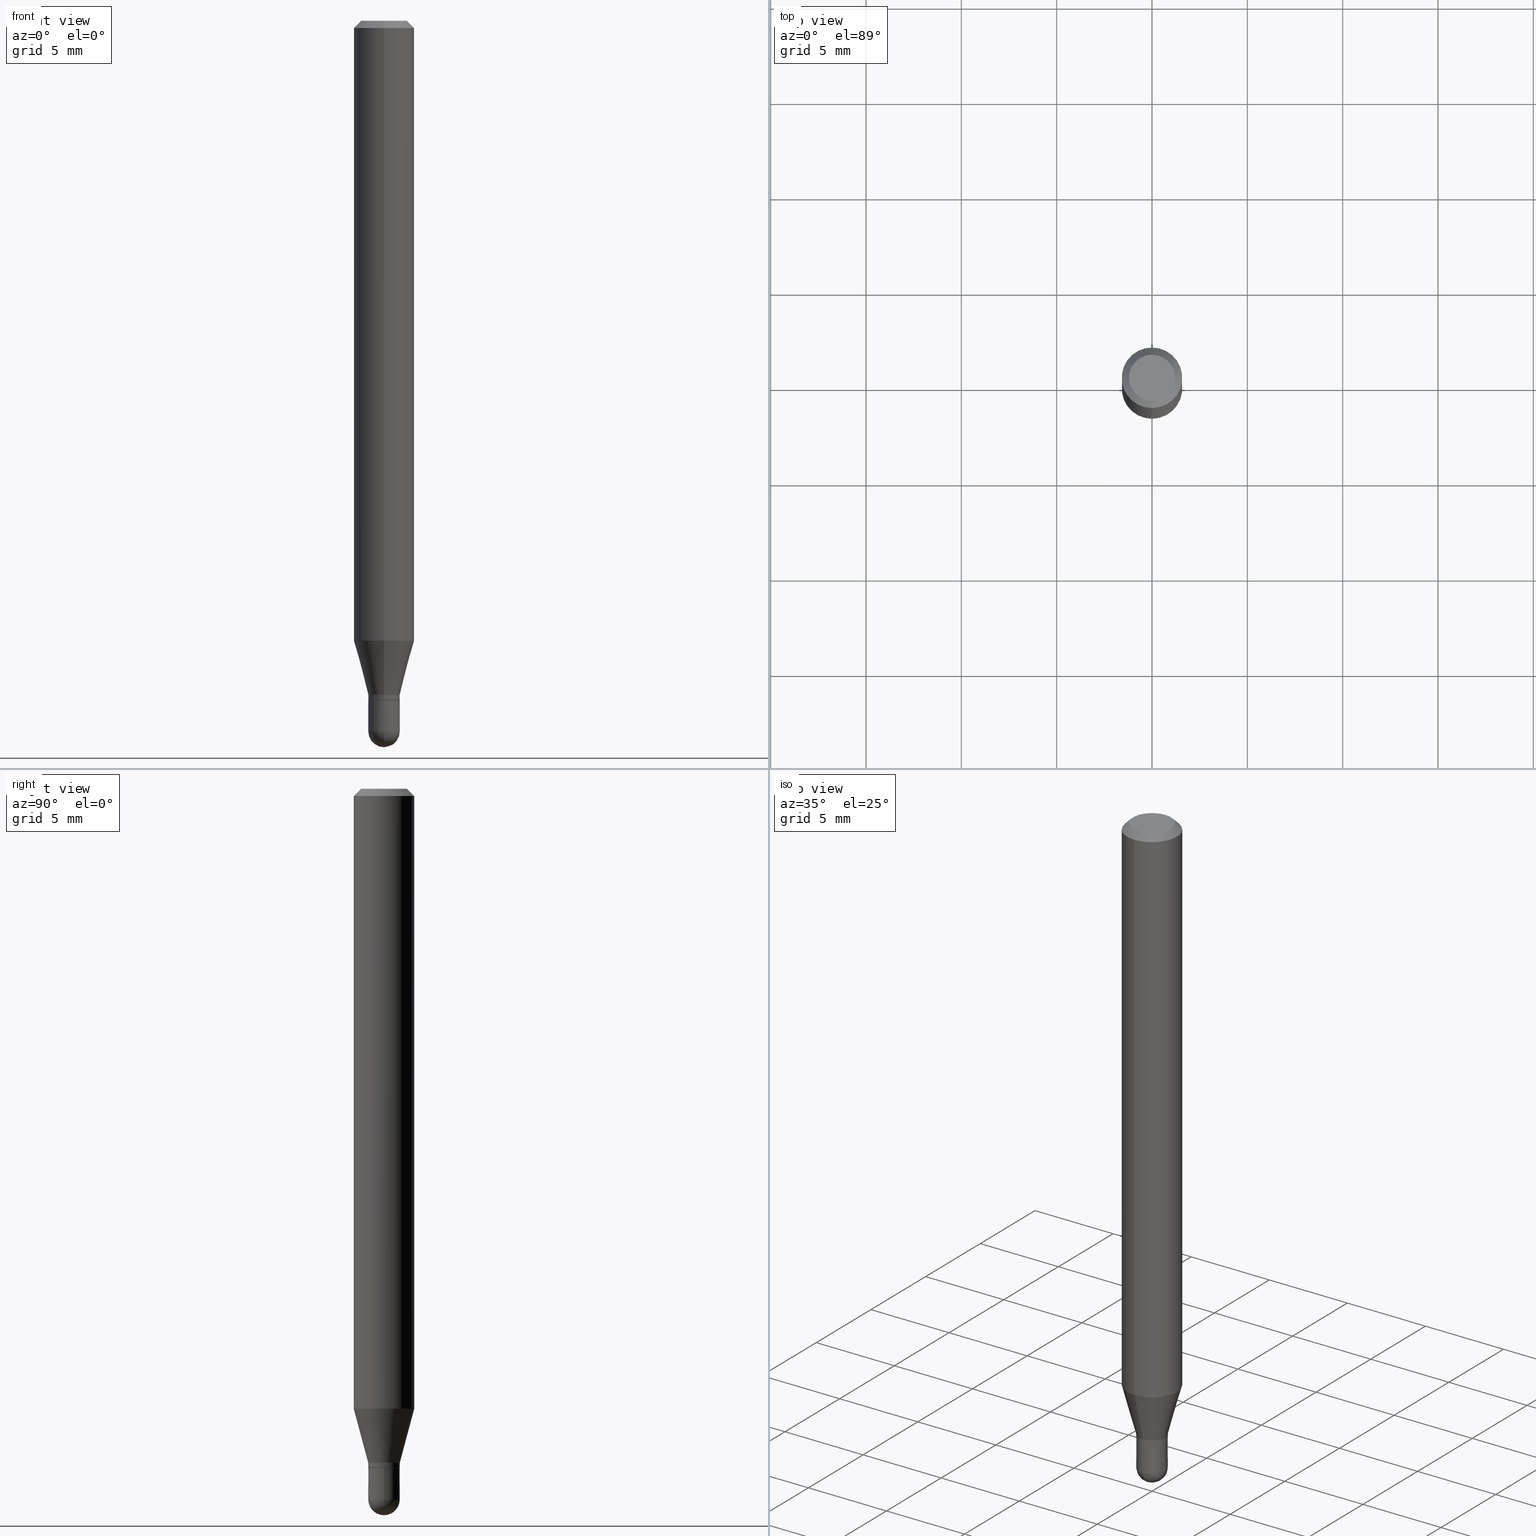
[diagram: canonical four-view strip — front | top / right | iso, engineering-drawing reading convention]
A machine part, canonical four-view strip (front | top / right | iso — engineering-drawing reading convention). The complete STEP part file that produces these views, byte-faithful:
ISO-10303-21;
HEADER;
FILE_DESCRIPTION (( 'STEP AP203' ),
    '1' );
FILE_NAME ('00726.STEP',
    '2024-03-07T18:07:59',
    ( '' ),
    ( '' ),
    'SwSTEP 2.0',
    'SolidWorks 2023',
    '' );
FILE_SCHEMA (( 'CONFIG_CONTROL_DESIGN' ));
ENDSEC;

DATA;
#1 = DIRECTION ( 'NONE',  ( -2.445482281465113779E-29, 3.491462041475252887E-15, 1.000000000000000000 ) ) ;
#2 = CARTESIAN_POINT ( 'NONE',  ( 3.428566158614090540E-29, -4.895029782148305126E-15, -1.402000000000000135 ) ) ;
#3 = AXIS2_PLACEMENT_3D ( 'NONE', #405, #52, #359 ) ;
#4 = AXIS2_PLACEMENT_3D ( 'NONE', #311, #274, #387 ) ;
#5 = CC_DESIGN_APPROVAL ( #261, ( #27 ) ) ;
#6 = CARTESIAN_POINT ( 'NONE',  ( 3.585946182636855061E-29, -5.127728966849546308E-15, -1.467500000000000027 ) ) ;
#7 = ADVANCED_FACE ( 'NONE', ( #51 ), #433, .T. ) ;
#8 = ORIENTED_EDGE ( 'NONE', *, *, #64, .F. ) ;
#9 = ADVANCED_FACE ( 'NONE', ( #133 ), #372, .T. ) ;
#10 = DIRECTION ( 'NONE',  ( -2.445482281465113779E-29, 3.491462041475252887E-15, 1.000000000000000000 ) ) ;
#11 = ORIENTED_EDGE ( 'NONE', *, *, #197, .F. ) ;
#12 = EDGE_CURVE ( 'NONE', #418, #285, #233, .T. ) ;
#13 = PERSON_AND_ORGANIZATION ( #327, #218 ) ;
#14 = CYLINDRICAL_SURFACE ( 'NONE', #234, 0.03250000000000000111 ) ;
#15 = CLOSED_SHELL ( 'NONE', ( #78, #7, #429, #445, #163, #9, #471, #425, #119, #26, #479, #62 ) ) ;
#16 = AXIS2_PLACEMENT_3D ( 'NONE', #139, #411, #458 ) ;
#17 = DATE_AND_TIME ( #224, #309 ) ;
#18 = AXIS2_PLACEMENT_3D ( 'NONE', #238, #499, #506 ) ;
#19 = AXIS2_PLACEMENT_3D ( 'NONE', #283, #396, #89 ) ;
#20 = DIRECTION ( 'NONE',  ( -1.000000000000000000, 6.982962677686265922E-15, -4.883557194083112340E-29 ) ) ;
#21 = DIRECTION ( 'NONE',  ( 0.000000000000000000, 0.000000000000000000, 1.000000000000000000 ) ) ;
#22 = DIRECTION ( 'NONE',  ( 4.937700262164548042E-15, 0.7071067811865451302, -0.7071067811865499042 ) ) ;
#23 = APPROVAL_ROLE ( '' ) ;
#24 = AXIS2_PLACEMENT_3D ( 'NONE', #179, #336, #494 ) ;
#25 = CARTESIAN_POINT ( 'NONE',  ( 0.000000000000000000, 0.000000000000000000, 0.000000000000000000 ) ) ;
#26 = ADVANCED_FACE ( 'NONE', ( #510 ), #162, .F. ) ;
#27 = PRODUCT_DEFINITION ( 'UNKNOWN', '', #186, #413 ) ;
#28 = CARTESIAN_POINT ( 'NONE',  ( 0.03250000000000000111, -5.122003124082894208E-15, -1.402000000000000135 ) ) ;
#29 = CARTESIAN_POINT ( 'NONE',  ( 2.309263891220329627E-16, 0.03250000000000006356, -1.134725163479459447E-16 ) ) ;
#30 = ORIENTED_EDGE ( 'NONE', *, *, #453, .T. ) ;
#31 = EDGE_CURVE ( 'NONE', #232, #165, #208, .T. ) ;
#32 = DIRECTION ( 'NONE',  ( -2.445468806185136597E-29, 3.491481338843145583E-15, 1.000000000000000000 ) ) ;
#33 = AXIS2_PLACEMENT_3D ( 'NONE', #137, #145, #298 ) ;
#34 = ORIENTED_EDGE ( 'NONE', *, *, #120, .F. ) ;
#35 = CC_DESIGN_PERSON_AND_ORGANIZATION_ASSIGNMENT ( #99, #60, ( #27 ) ) ;
#36 = DIRECTION ( 'NONE',  ( -6.982962677686265922E-15, -1.000000000000000000, 3.483106191921935554E-15 ) ) ;
#37 = VERTEX_POINT ( 'NONE', #54 ) ;
#38 = LINE ( 'NONE', #328, #49 ) ;
#39 = ORIENTED_EDGE ( 'NONE', *, *, #502, .F. ) ;
#40 = DIRECTION ( 'NONE',  ( -2.445482281465113779E-29, 3.491462041475253282E-15, 1.000000000000000000 ) ) ;
#41 = CIRCLE ( 'NONE', #493, 0.03250000000000000111 ) ;
#42 = FACE_OUTER_BOUND ( 'NONE', #255, .T. ) ;
#43 = EDGE_LOOP ( 'NONE', ( #459, #30, #83, #472 ) ) ;
#44 = FACE_OUTER_BOUND ( 'NONE', #478, .T. ) ;
#45 = VERTEX_POINT ( 'NONE', #451 ) ;
#46 = CARTESIAN_POINT ( 'NONE',  ( 3.668223422197672875E-31, -5.237193062212882215E-17, -0.01500000000000000812 ) ) ;
#47 = EDGE_LOOP ( 'NONE', ( #395, #244, #402, #209, #314 ) ) ;
#48 = AXIS2_PLACEMENT_3D ( 'NONE', #486, #443, #100 ) ;
#49 = VECTOR ( 'NONE', #481, 39.37007874015748143 ) ;
#50 = EDGE_CURVE ( 'NONE', #173, #168, #369, .T. ) ;
#51 = FACE_OUTER_BOUND ( 'NONE', #270, .T. ) ;
#52 = DIRECTION ( 'NONE',  ( -2.445482281465113779E-29, 3.491462041475252887E-15, 1.000000000000000000 ) ) ;
#53 = CALENDAR_DATE ( 2024, 7, 3 ) ;
#54 = CARTESIAN_POINT ( 'NONE',  ( 3.840629472727447874E-16, 0.04749999999999999362, -1.747056831868805136E-16 ) ) ;
#55 = ADVANCED_FACE ( 'NONE', ( #377 ), #106, .T. ) ;
#56 = AXIS2_PLACEMENT_3D ( 'NONE', #320, #358, #242 ) ;
#57 = COORDINATED_UNIVERSAL_TIME_OFFSET ( 5, 0, .BEHIND. ) ;
#58 = AXIS2_PLACEMENT_3D ( 'NONE', #302, #21, #102 ) ;
#59 = CARTESIAN_POINT ( 'NONE',  ( 3.588725473076687933E-29, -5.123748864752316500E-15, -1.467500000000000027 ) ) ;
#60 = PERSON_AND_ORGANIZATION_ROLE ( 'creator' ) ;
#61 = DIRECTION ( 'NONE',  ( -2.445482281465113779E-29, 3.491462041475252887E-15, 1.000000000000000000 ) ) ;
#62 = ADVANCED_FACE ( 'NONE', ( #345 ), #265, .T. ) ;
#63 = APPLICATION_PROTOCOL_DEFINITION ( 'international standard', 'config_control_design', 1994, #201 ) ;
#64 = EDGE_CURVE ( 'NONE', #173, #45, #134, .T. ) ;
#65 = CARTESIAN_POINT ( 'NONE',  ( -2.269462870248040921E-16, -0.03250000000000006356, 1.134725163479459447E-16 ) ) ;
#66 = CIRCLE ( 'NONE', #184, 0.06250000000000000000 ) ;
#67 = DIRECTION ( 'NONE',  ( -1.807323732225330139E-15, -0.2588190451025181860, 0.9659258262890689783 ) ) ;
#68 = EDGE_CURVE ( 'NONE', #206, #418, #223, .T. ) ;
#69 = CIRCLE ( 'NONE', #310, 0.03249999999999992478 ) ;
#70 = CARTESIAN_POINT ( 'NONE',  ( 3.428547266271562329E-29, -4.895056837058090855E-15, -1.402000000000000135 ) ) ;
#71 = ORIENTED_EDGE ( 'NONE', *, *, #64, .T. ) ;
#72 = DIRECTION ( 'NONE',  ( -2.445482281465113779E-29, 3.491462041475252887E-15, 1.000000000000000000 ) ) ;
#73 = ORIENTED_EDGE ( 'NONE', *, *, #449, .F. ) ;
#74 = CYLINDRICAL_SURFACE ( 'NONE', #304, 0.03250000000000000111 ) ;
#75 = AXIS2_PLACEMENT_3D ( 'NONE', #157, #318, #346 ) ;
#76 = CARTESIAN_POINT ( 'NONE',  ( 3.666813564057788459E-29, -5.239212059313334264E-15, -1.500000000000000222 ) ) ;
#77 = ORIENTED_EDGE ( 'NONE', *, *, #449, .T. ) ;
#78 = ADVANCED_FACE ( 'NONE', ( #379 ), #216, .T. ) ;
#79 = DIRECTION ( 'NONE',  ( -6.982962677686265922E-15, -1.000000000000000000, 0.000000000000000000 ) ) ;
#80 = ORIENTED_EDGE ( 'NONE', *, *, #228, .F. ) ;
#81 = DIRECTION ( 'NONE',  ( 6.982962677686265922E-15, 1.000000000000000000, 0.000000000000000000 ) ) ;
#82 = AXIS2_PLACEMENT_3D ( 'NONE', #2, #332, #482 ) ;
#83 = ORIENTED_EDGE ( 'NONE', *, *, #195, .T. ) ;
#84 = AXIS2_PLACEMENT_3D ( 'NONE', #46, #509, #367 ) ;
#85 = APPROVAL_PERSON_ORGANIZATION ( #484, #330, #174 ) ;
#86 = CIRCLE ( 'NONE', #317, 0.03250000000000000111 ) ;
#87 = CARTESIAN_POINT ( 'NONE',  ( 0.000000000000000000, 0.000000000000000000, 0.000000000000000000 ) ) ;
#88 = ORIENTED_EDGE ( 'NONE', *, *, #417, .T. ) ;
#89 = DIRECTION ( 'NONE',  ( -6.982962677686265133E-15, -1.000000000000000000, 0.000000000000000000 ) ) ;
#90 = ORIENTED_EDGE ( 'NONE', *, *, #426, .T. ) ;
#91 = DIRECTION ( 'NONE',  ( -6.982962677686265922E-15, -1.000000000000000000, 3.491462041475252887E-15 ) ) ;
#92 = ORIENTED_EDGE ( 'NONE', *, *, #195, .F. ) ;
#93 = CIRCLE ( 'NONE', #380, 0.04749999999999999362 ) ;
#94 = COORDINATED_UNIVERSAL_TIME_OFFSET ( 5, 0, .BEHIND. ) ;
#95 = ORIENTED_EDGE ( 'NONE', *, *, #487, .T. ) ;
#96 = DIRECTION ( 'NONE',  ( -6.982962677686265133E-15, -1.000000000000000000, 0.000000000000000000 ) ) ;
#97 = MECHANICAL_CONTEXT ( 'NONE', #190, 'mechanical' ) ;
#98 = CARTESIAN_POINT ( 'NONE',  ( 0.000000000000000000, 0.000000000000000000, 0.000000000000000000 ) ) ;
#99 = PERSON_AND_ORGANIZATION ( #327, #218 ) ;
#100 = DIRECTION ( 'NONE',  ( 1.000000000000000000, -6.982962677686258033E-15, 0.000000000000000000 ) ) ;
#101 = AXIS2_PLACEMENT_3D ( 'NONE', #70, #236, #229 ) ;
#102 = DIRECTION ( 'NONE',  ( 1.000000000000000000, 0.000000000000000000, 0.000000000000000000 ) ) ;
#103 = DIRECTION ( 'NONE',  ( 1.000000000000000000, -6.982962677686267499E-15, 4.876176775795936353E-29 ) ) ;
#104 = EDGE_CURVE ( 'NONE', #285, #420, #489, .T. ) ;
#105 = EDGE_CURVE ( 'NONE', #165, #428, #335, .T. ) ;
#106 = SPHERICAL_SURFACE ( 'NONE', #243, 0.03250000000000000111 ) ;
#107 = UNCERTAINTY_MEASURE_WITH_UNIT (LENGTH_MEASURE( 1.000000000000000082E-05 ), #331, 'distance_accuracy_value', 'NONE');
#108 = PLANE ( 'NONE',  #33 ) ;
#109 = VECTOR ( 'NONE', #278, 39.37007874015748143 ) ;
#110 = SPHERICAL_SURFACE ( 'NONE', #393, 0.03250000000000000111 ) ;
#111 = DIRECTION ( 'NONE',  ( -2.445482281465113779E-29, 3.491462041475252887E-15, 1.000000000000000000 ) ) ;
#112 = EDGE_CURVE ( 'NONE', #37, #239, #187, .T. ) ;
#113 = CARTESIAN_POINT ( 'NONE',  ( 4.440892098500940720E-16, 0.06249999999999993755, -0.01500000000000022669 ) ) ;
#114 = ORIENTED_EDGE ( 'NONE', *, *, #180, .T. ) ;
#115 = CARTESIAN_POINT ( 'NONE',  ( 3.585946182636855061E-29, -5.127728966849546308E-15, -1.467500000000000027 ) ) ;
#116 = VECTOR ( 'NONE', #40, 39.37007874015748143 ) ;
#117 = AXIS2_PLACEMENT_3D ( 'NONE', #248, #360, #124 ) ;
#118 = ORIENTED_EDGE ( 'NONE', *, *, #341, .T. ) ;
#119 = ADVANCED_FACE ( 'NONE', ( #143 ), #108, .F. ) ;
#120 = EDGE_CURVE ( 'NONE', #389, #239, #260, .T. ) ;
#121 = DIRECTION ( 'NONE',  ( -6.982962677686265922E-15, -1.000000000000000000, 4.370956789862821150E-15 ) ) ;
#122 = ORIENTED_EDGE ( 'NONE', *, *, #105, .F. ) ;
#123 = CYLINDRICAL_SURFACE ( 'NONE', #288, 0.06250000000000000000 ) ;
#124 = DIRECTION ( 'NONE',  ( -6.982962677686265133E-15, -1.000000000000000000, 0.000000000000000000 ) ) ;
#125 = ORIENTED_EDGE ( 'NONE', *, *, #480, .T. ) ;
#126 = LOCAL_TIME ( 13, 7, 59.00000000000000000, #94 ) ;
#127 = MANIFOLD_SOLID_BREP ( 'Body-Move/Copy2[1]', #176 ) ;
#128 = DIRECTION ( 'NONE',  ( -4.937700262164674260E-15, -0.7071067811865632269, 0.7071067811865319186 ) ) ;
#129 = ORIENTED_EDGE ( 'NONE', *, *, #12, .T. ) ;
#130 = ADVANCED_FACE ( 'NONE', ( #452 ), #14, .T. ) ;
#131 = FACE_OUTER_BOUND ( 'NONE', #241, .T. ) ;
#132 = ORIENTED_EDGE ( 'NONE', *, *, #221, .T. ) ;
#133 = FACE_OUTER_BOUND ( 'NONE', #43, .T. ) ;
#134 = CIRCLE ( 'NONE', #141, 0.03200000000000000067 ) ;
#135 = LINE ( 'NONE', #338, #210 ) ;
#136 = PERSON_AND_ORGANIZATION ( #327, #218 ) ;
#137 = CARTESIAN_POINT ( 'NONE',  ( 3.316907271900976096E-16, 0.04749999999999999362, -1.702750650784775139E-16 ) ) ;
#138 = CALENDAR_DATE ( 2024, 7, 3 ) ;
#139 = CARTESIAN_POINT ( 'NONE',  ( 3.404111335799438775E-29, -4.860115161733551679E-15, -1.392000000000000126 ) ) ;
#140 = AXIS2_PLACEMENT_3D ( 'NONE', #321, #259, #444 ) ;
#141 = AXIS2_PLACEMENT_3D ( 'NONE', #412, #300, #491 ) ;
#142 = APPROVAL_DATE_TIME ( #344, #330 ) ;
#143 = FACE_OUTER_BOUND ( 'NONE', #203, .T. ) ;
#144 = EDGE_CURVE ( 'NONE', #206, #168, #254, .T. ) ;
#145 = DIRECTION ( 'NONE',  ( 2.445482281465113218E-29, -3.491462041475253282E-15, -1.000000000000000000 ) ) ;
#146 = CARTESIAN_POINT ( 'NONE',  ( 3.588725473076687933E-29, -5.123748864752316500E-15, -1.467500000000000027 ) ) ;
#147 = EDGE_LOOP ( 'NONE', ( #347, #95, #247, #392 ) ) ;
#148 = AXIS2_PLACEMENT_3D ( 'NONE', #295, #442, #96 ) ;
#149 = LOCAL_TIME ( 13, 7, 59.00000000000000000, #492 ) ;
#150 = CARTESIAN_POINT ( 'NONE',  ( -4.364351673553605094E-16, -0.06250000000000451028, -1.280038475772934614 ) ) ;
#151 = ORIENTED_EDGE ( 'NONE', *, *, #370, .T. ) ;
#152 = CARTESIAN_POINT ( 'NONE',  ( 2.309263891220654539E-16, 0.03249999999999491490, -1.401500000000000412 ) ) ;
#153 = VERTEX_POINT ( 'NONE', #447 ) ;
#154 = CARTESIAN_POINT ( 'NONE',  ( -4.364351673553912750E-16, -0.06250000000000005551, -0.01499999999999979128 ) ) ;
#155 = EDGE_CURVE ( 'NONE', #273, #389, #135, .T. ) ;
#156 = EDGE_LOOP ( 'NONE', ( #237, #114, #326, #390 ) ) ;
#157 = CARTESIAN_POINT ( 'NONE',  ( 3.428547266271562329E-29, -4.895056837058090855E-15, -1.402000000000000135 ) ) ;
#158 = VECTOR ( 'NONE', #303, 39.37007874015748143 ) ;
#159 = CC_DESIGN_APPROVAL ( #466, ( #186 ) ) ;
#160 = ORIENTED_EDGE ( 'NONE', *, *, #301, .F. ) ;
#161 = CARTESIAN_POINT ( 'NONE',  ( -2.269462870247710093E-16, -0.03250000000000505956, -1.392000000000000126 ) ) ;
#162 = PLANE ( 'NONE',  #140 ) ;
#163 = ADVANCED_FACE ( 'NONE', ( #406 ), #485, .T. ) ;
#164 = CARTESIAN_POINT ( 'NONE',  ( 4.440892098500625669E-16, 0.06250000000000000000, -2.182163775922033055E-16 ) ) ;
#165 = VERTEX_POINT ( 'NONE', #231 ) ;
#166 = DIRECTION ( 'NONE',  ( -2.445482281465113779E-29, 3.491462041475252887E-15, 1.000000000000000000 ) ) ;
#167 = CC_DESIGN_DATE_AND_TIME_ASSIGNMENT ( #222, #376, ( #401 ) ) ;
#168 = VERTEX_POINT ( 'NONE', #152 ) ;
#169 = VECTOR ( 'NONE', #414, 39.37007874015748143 ) ;
#170 = DIRECTION ( 'NONE',  ( 1.000000000000000000, -6.982962677686265922E-15, 4.883557194083112340E-29 ) ) ;
#171 = ORIENTED_EDGE ( 'NONE', *, *, #104, .T. ) ;
#172 = LENGTH_MEASURE_WITH_UNIT ( LENGTH_MEASURE( 0.02539999999999999897 ), #252 );
#173 = VERTEX_POINT ( 'NONE', #383 ) ;
#174 = APPROVAL_ROLE ( '' ) ;
#175 = CARTESIAN_POINT ( 'NONE',  ( 0.000000000000000000, 0.000000000000000000, 0.000000000000000000 ) ) ;
#176 = CLOSED_SHELL ( 'NONE', ( #130, #55, #272, #404, #250 ) ) ;
#177 = AXIS2_PLACEMENT_3D ( 'NONE', #98, #220, #214 ) ;
#178 = APPROVAL_STATUS ( 'not_yet_approved' ) ;
#179 = CARTESIAN_POINT ( 'NONE',  ( 3.427343417473357420E-29, -4.893284051127568361E-15, -1.401500000000000412 ) ) ;
#180 = EDGE_CURVE ( 'NONE', #168, #285, #382, .T. ) ;
#181 = DIRECTION ( 'NONE',  ( -2.445468806185136597E-29, 3.491481338843145583E-15, 1.000000000000000000 ) ) ;
#182 = PERSON_AND_ORGANIZATION ( #327, #218 ) ;
#183 = DIRECTION ( 'NONE',  ( -2.445482281465113779E-29, 3.491462041475253282E-15, 1.000000000000000000 ) ) ;
#184 = AXIS2_PLACEMENT_3D ( 'NONE', #315, #111, #36 ) ;
#185 = PERSON_AND_ORGANIZATION_ROLE ( 'classification_officer' ) ;
#186 = PRODUCT_DEFINITION_FORMATION_WITH_SPECIFIED_SOURCE ( 'ANY', '', #235, .NOT_KNOWN. ) ;
#187 = LINE ( 'NONE', #375, #434 ) ;
#188 = FACE_OUTER_BOUND ( 'NONE', #398, .T. ) ;
#189 = CARTESIAN_POINT ( 'NONE',  ( -2.269462870247710093E-16, -0.03250000000000505956, -1.392000000000000126 ) ) ;
#190 = APPLICATION_CONTEXT ( 'configuration controlled 3d designs of mechanical parts and assemblies' ) ;
#191 = ORIENTED_EDGE ( 'NONE', *, *, #385, .T. ) ;
#192 = CC_DESIGN_APPROVAL ( #330, ( #401 ) ) ;
#193 = DIRECTION ( 'NONE',  ( -2.445468806185136597E-29, 3.491481338843145583E-15, 1.000000000000000000 ) ) ;
#194 = VERTEX_POINT ( 'NONE', #76 ) ;
#195 = EDGE_CURVE ( 'NONE', #418, #273, #421, .T. ) ;
#196 = CARTESIAN_POINT ( 'NONE',  ( 2.166999616007603867E-46, -3.093866989152393802E-32, -8.861236216806002591E-18 ) ) ;
#197 = EDGE_CURVE ( 'NONE', #239, #389, #66, .T. ) ;
#198 = CARTESIAN_POINT ( 'NONE',  ( 3.585946182636855061E-29, -5.127728966849546308E-15, -1.467500000000000027 ) ) ;
#199 = ORIENTED_EDGE ( 'NONE', *, *, #50, .T. ) ;
#200 = CARTESIAN_POINT ( 'NONE',  ( 2.166999616007603867E-46, -3.093866989152393802E-32, -8.861236216806002591E-18 ) ) ;
#201 = APPLICATION_CONTEXT ( 'configuration controlled 3d designs of mechanical parts and assemblies' ) ;
#202 = CARTESIAN_POINT ( 'NONE',  ( -0.03250000000000000111, -4.778476461783171307E-15, -1.402000000000000135 ) ) ;
#203 = EDGE_LOOP ( 'NONE', ( #293, #353 ) ) ;
#204 = CC_DESIGN_PERSON_AND_ORGANIZATION_ASSIGNMENT ( #13, #258, ( #235 ) ) ;
#205 = DIRECTION ( 'NONE',  ( -6.982962677686265133E-15, -1.000000000000000000, 0.000000000000000000 ) ) ;
#206 = VERTEX_POINT ( 'NONE', #281 ) ;
#207 = CARTESIAN_POINT ( 'NONE',  ( -0.03250000000000000111, -4.778476461783171307E-15, -1.467500000000000027 ) ) ;
#208 = CIRCLE ( 'NONE', #48, 0.03250000000000000111 ) ;
#209 = ORIENTED_EDGE ( 'NONE', *, *, #480, .F. ) ;
#210 = VECTOR ( 'NONE', #257, 39.37007874015748143 ) ;
#211 = DIMENSIONAL_EXPONENTS ( 1.000000000000000000, 0.000000000000000000, 0.000000000000000000, 0.000000000000000000, 0.000000000000000000, 0.000000000000000000, 0.000000000000000000 ) ;
#212 = ORIENTED_EDGE ( 'NONE', *, *, #144, .F. ) ;
#213 = COORDINATED_UNIVERSAL_TIME_OFFSET ( 5, 0, .BEHIND. ) ;
#214 = DIRECTION ( 'NONE',  ( -6.982962677686265922E-15, -1.000000000000000000, 3.491462041475252887E-15 ) ) ;
#215 = APPROVAL_STATUS ( 'not_yet_approved' ) ;
#216 = CYLINDRICAL_SURFACE ( 'NONE', #423, 0.03250000000000006356 ) ;
#217 = VECTOR ( 'NONE', #67, 39.37007874015748143 ) ;
#218 = ORGANIZATION ( 'UNSPECIFIED', 'UNSPECIFIED', '' ) ;
#219 = DATE_AND_TIME ( #53, #350 ) ;
#220 = DIRECTION ( 'NONE',  ( -2.445482281465113779E-29, 3.491462041475252887E-15, 1.000000000000000000 ) ) ;
#221 = EDGE_CURVE ( 'NONE', #428, #363, #343, .T. ) ;
#222 = DATE_AND_TIME ( #138, #126 ) ;
#223 = LINE ( 'NONE', #65, #446 ) ;
#224 = CALENDAR_DATE ( 2024, 7, 3 ) ;
#225 = CARTESIAN_POINT ( 'NONE',  ( 3.585946182636855061E-29, -5.127728966849546308E-15, -1.467500000000000027 ) ) ;
#226 = AXIS2_PLACEMENT_3D ( 'NONE', #348, #313, #354 ) ;
#227 = DIRECTION ( 'NONE',  ( -2.445468806185136877E-29, 3.491481338843145188E-15, 1.000000000000000000 ) ) ;
#228 = EDGE_CURVE ( 'NONE', #428, #476, #416, .T. ) ;
#229 = DIRECTION ( 'NONE',  ( 1.000000000000000000, -6.982962677686258033E-15, 0.000000000000000000 ) ) ;
#230 = ORIENTED_EDGE ( 'NONE', *, *, #417, .F. ) ;
#231 = CARTESIAN_POINT ( 'NONE',  ( 2.269462870248395415E-16, 0.03249999999999488021, -1.467500000000000027 ) ) ;
#232 = VERTEX_POINT ( 'NONE', #351 ) ;
#233 = CIRCLE ( 'NONE', #3, 0.03250000000000020234 ) ;
#234 = AXIS2_PLACEMENT_3D ( 'NONE', #175, #181, #103 ) ;
#235 = PRODUCT ( '00726', '00726', '', ( #97 ) ) ;
#236 = DIRECTION ( 'NONE',  ( -2.445468806185136597E-29, 3.491481338843145583E-15, 1.000000000000000000 ) ) ;
#237 = ORIENTED_EDGE ( 'NONE', *, *, #144, .T. ) ;
#238 = CARTESIAN_POINT ( 'NONE',  ( 2.269462870248379145E-16, 0.03249999999999510225, -1.402000000000000135 ) ) ;
#239 = VERTEX_POINT ( 'NONE', #113 ) ;
#240 = ORIENTED_EDGE ( 'NONE', *, *, #453, .F. ) ;
#241 = EDGE_LOOP ( 'NONE', ( #230, #312, #461, #329 ) ) ;
#242 = DIRECTION ( 'NONE',  ( 6.982962677686265922E-15, 1.000000000000000000, -3.483106191921935554E-15 ) ) ;
#243 = AXIS2_PLACEMENT_3D ( 'NONE', #225, #20, #496 ) ;
#244 = ORIENTED_EDGE ( 'NONE', *, *, #228, .T. ) ;
#245 = VECTOR ( 'NONE', #286, 39.37007874015748143 ) ;
#246 = DIRECTION ( 'NONE',  ( -1.000000000000000000, 6.982962677686265922E-15, -4.883557194083112340E-29 ) ) ;
#247 = ORIENTED_EDGE ( 'NONE', *, *, #31, .F. ) ;
#248 = CARTESIAN_POINT ( 'NONE',  ( 3.428566158614090540E-29, -4.895029782148305126E-15, -1.402000000000000135 ) ) ;
#249 = ORIENTED_EDGE ( 'NONE', *, *, #251, .T. ) ;
#250 = ADVANCED_FACE ( 'NONE', ( #386 ), #74, .T. ) ;
#251 = EDGE_CURVE ( 'NONE', #363, #232, #268, .T. ) ;
#252 =( LENGTH_UNIT ( ) NAMED_UNIT ( * ) SI_UNIT ( $, .METRE. ) );
#253 = ORIENTED_EDGE ( 'NONE', *, *, #385, .F. ) ;
#254 = CIRCLE ( 'NONE', #24, 0.03249999999999992478 ) ;
#255 = EDGE_LOOP ( 'NONE', ( #282, #118, #424, #11 ) ) ;
#256 = DATE_TIME_ROLE ( 'creation_date' ) ;
#257 = DIRECTION ( 'NONE',  ( -2.445482281465113779E-29, 3.491462041475253282E-15, 1.000000000000000000 ) ) ;
#258 = PERSON_AND_ORGANIZATION_ROLE ( 'design_owner' ) ;
#259 = DIRECTION ( 'NONE',  ( -2.445482281465113218E-29, 3.491462041475253282E-15, 1.000000000000000000 ) ) ;
#260 = CIRCLE ( 'NONE', #415, 0.06250000000000000000 ) ;
#261 = APPROVAL ( #215, 'UNSPECIFIED' ) ;
#262 = AXIS2_PLACEMENT_3D ( 'NONE', #362, #394, #91 ) ;
#263 = DIRECTION ( 'NONE',  ( -6.982962677686265922E-15, -1.000000000000000000, 3.491462041475252887E-15 ) ) ;
#264 = COORDINATED_UNIVERSAL_TIME_OFFSET ( 5, 0, .BEHIND. ) ;
#265 = CYLINDRICAL_SURFACE ( 'NONE', #177, 0.03250000000000006356 ) ;
#266 = PRODUCT_RELATED_PRODUCT_CATEGORY ( 'detail', '', ( #235 ) ) ;
#267 = DIRECTION ( 'NONE',  ( -6.982962677686265922E-15, -1.000000000000000000, 3.483106191921935554E-15 ) ) ;
#268 = CIRCLE ( 'NONE', #465, 0.03250000000000000111 ) ;
#269 = CARTESIAN_POINT ( 'NONE',  ( 3.375077994860809709E-16, 0.03249999999999533817, -1.392000000000000126 ) ) ;
#270 = EDGE_LOOP ( 'NONE', ( #77, #199, #212, #39 ) ) ;
#271 = DIRECTION ( 'NONE',  ( -2.445482281465113779E-29, 3.491462041475252887E-15, 1.000000000000000000 ) ) ;
#272 = ADVANCED_FACE ( 'NONE', ( #188 ), #463, .F. ) ;
#273 = VERTEX_POINT ( 'NONE', #150 ) ;
#274 = DIRECTION ( 'NONE',  ( -2.445482281465113779E-29, 3.491462041475252887E-15, 1.000000000000000000 ) ) ;
#275 = ORIENTED_EDGE ( 'NONE', *, *, #342, .F. ) ;
#276 = CONICAL_SURFACE ( 'NONE', #84, 0.06250000000000000000, 0.7853981633974483900 ) ;
#277 = APPROVAL_PERSON_ORGANIZATION ( #305, #261, #368 ) ;
#278 = DIRECTION ( 'NONE',  ( -2.445482281465113779E-29, 3.491462041475253282E-15, 1.000000000000000000 ) ) ;
#279 = ADVANCED_BREP_SHAPE_REPRESENTATION ( '00726', ( #127, #462, #58 ), #495 ) ;
#280 = EDGE_LOOP ( 'NONE', ( #73, #8 ) ) ;
#281 = CARTESIAN_POINT ( 'NONE',  ( -2.269462870247696287E-16, -0.03250000000000492772, -1.401500000000000412 ) ) ;
#282 = ORIENTED_EDGE ( 'NONE', *, *, #426, .F. ) ;
#283 = CARTESIAN_POINT ( 'NONE',  ( 3.428566158614090540E-29, -4.895029782148305126E-15, -1.402000000000000135 ) ) ;
#284 = EDGE_LOOP ( 'NONE', ( #291, #440, #464, #240 ) ) ;
#285 = VERTEX_POINT ( 'NONE', #269 ) ;
#286 = DIRECTION ( 'NONE',  ( -2.445468806185136877E-29, 3.491481338843145188E-15, 1.000000000000000000 ) ) ;
#287 = CIRCLE ( 'NONE', #435, 0.04749999999999999362 ) ;
#288 = AXIS2_PLACEMENT_3D ( 'NONE', #87, #10, #437 ) ;
#289 = VERTEX_POINT ( 'NONE', #28 ) ;
#290 = CARTESIAN_POINT ( 'NONE',  ( 4.440892098500935790E-16, 0.06249999999999548972, -1.280038475772935058 ) ) ;
#291 = ORIENTED_EDGE ( 'NONE', *, *, #180, .F. ) ;
#292 = EDGE_CURVE ( 'NONE', #289, #476, #325, .T. ) ;
#293 = ORIENTED_EDGE ( 'NONE', *, *, #441, .T. ) ;
#294 =( NAMED_UNIT ( * ) SI_UNIT ( $, .STERADIAN. ) SOLID_ANGLE_UNIT ( ) );
#295 = CARTESIAN_POINT ( 'NONE',  ( 3.404111335799438775E-29, -4.860115161733551679E-15, -1.392000000000000126 ) ) ;
#296 = CIRCLE ( 'NONE', #474, 0.03250000000000020234 ) ;
#297 = APPLICATION_PROTOCOL_DEFINITION ( 'international standard', 'config_control_design', 1994, #190 ) ;
#298 = DIRECTION ( 'NONE',  ( 6.982962677686265922E-15, 1.000000000000000000, -3.491462041475253282E-15 ) ) ;
#299 = PERSON_AND_ORGANIZATION_ROLE ( 'design_supplier' ) ;
#300 = DIRECTION ( 'NONE',  ( -2.445482281465113779E-29, 3.491462041475252887E-15, 1.000000000000000000 ) ) ;
#301 = EDGE_CURVE ( 'NONE', #476, #289, #473, .T. ) ;
#302 = CARTESIAN_POINT ( 'NONE',  ( 0.000000000000000000, 0.000000000000000000, 0.000000000000000000 ) ) ;
#303 = DIRECTION ( 'NONE',  ( 1.839019923739600315E-15, 0.2588190451025249583, 0.9659258262890670910 ) ) ;
#304 = AXIS2_PLACEMENT_3D ( 'NONE', #504, #193, #460 ) ;
#305 = PERSON_AND_ORGANIZATION ( #327, #218 ) ;
#306 = CARTESIAN_POINT ( 'NONE',  ( 2.273736754432662811E-16, 0.03199999999999510181, -1.402000000000000135 ) ) ;
#307 = CARTESIAN_POINT ( 'NONE',  ( 3.668223422197672875E-31, -5.237193062212882215E-17, -0.01500000000000000812 ) ) ;
#308 = CARTESIAN_POINT ( 'NONE',  ( -2.309263891219966751E-16, -0.03250000000000512895, -1.467500000000000027 ) ) ;
#309 = LOCAL_TIME ( 13, 7, 59.00000000000000000, #213 ) ;
#310 = AXIS2_PLACEMENT_3D ( 'NONE', #436, #166, #79 ) ;
#311 = CARTESIAN_POINT ( 'NONE',  ( 3.130311412096322891E-29, -4.469205749789042696E-15, -1.280038475772934836 ) ) ;
#312 = ORIENTED_EDGE ( 'NONE', *, *, #441, .F. ) ;
#313 = DIRECTION ( 'NONE',  ( -2.445468806185136597E-29, 3.491481338843145583E-15, 1.000000000000000000 ) ) ;
#314 = ORIENTED_EDGE ( 'NONE', *, *, #31, .T. ) ;
#315 = CARTESIAN_POINT ( 'NONE',  ( 3.668223422197672875E-31, -5.237193062212882215E-17, -0.01500000000000000812 ) ) ;
#316 = VECTOR ( 'NONE', #227, 39.37007874015748143 ) ;
#317 = AXIS2_PLACEMENT_3D ( 'NONE', #6, #170, #477 ) ;
#318 = DIRECTION ( 'NONE',  ( -2.445468806185136597E-29, 3.491481338843145583E-15, 1.000000000000000000 ) ) ;
#319 = ORIENTED_EDGE ( 'NONE', *, *, #292, .T. ) ;
#320 = CARTESIAN_POINT ( 'NONE',  ( 3.668223422197672875E-31, -5.237193062212882215E-17, -0.01500000000000000812 ) ) ;
#321 = CARTESIAN_POINT ( 'NONE',  ( 3.428566158614090540E-29, -4.895029782148305126E-15, -1.402000000000000135 ) ) ;
#322 = DIRECTION ( 'NONE',  ( -6.982962677686266711E-15, -1.000000000000000000, 3.491462041475252887E-15 ) ) ;
#323 = EDGE_LOOP ( 'NONE', ( #275, #88, #355, #422 ) ) ;
#324 = LINE ( 'NONE', #475, #501 ) ;
#325 = CIRCLE ( 'NONE', #101, 0.03250000000000000111 ) ;
#326 = ORIENTED_EDGE ( 'NONE', *, *, #12, .F. ) ;
#327 = PERSON ( 'UNSPECIFIED', 'UNSPECIFIED', 'UNSPECIFIED', ('UNSPECIFIED'), ('UNSPECIFIED'), ('UNSPECIFIED') ) ;
#328 = CARTESIAN_POINT ( 'NONE',  ( -4.287811248607203282E-16, -0.06250000000000005551, -0.01499999999999979128 ) ) ;
#329 = ORIENTED_EDGE ( 'NONE', *, *, #197, .T. ) ;
#330 = APPROVAL ( #339, 'UNSPECIFIED' ) ;
#331 =( CONVERSION_BASED_UNIT ( 'INCH', #172 ) LENGTH_UNIT ( ) NAMED_UNIT ( #211 ) );
#332 = DIRECTION ( 'NONE',  ( -2.445482281465113779E-29, 3.491462041475252887E-15, 1.000000000000000000 ) ) ;
#333 = CALENDAR_DATE ( 2024, 7, 3 ) ;
#334 = DIRECTION ( 'NONE',  ( 1.000000000000000000, -6.982962677686258033E-15, 0.000000000000000000 ) ) ;
#335 = CIRCLE ( 'NONE', #349, 0.03250000000000000111 ) ;
#336 = DIRECTION ( 'NONE',  ( -2.445482281465113779E-29, 3.491462041475252887E-15, 1.000000000000000000 ) ) ;
#337 = PERSON_AND_ORGANIZATION ( #327, #218 ) ;
#338 = CARTESIAN_POINT ( 'NONE',  ( -4.364351673553916201E-16, -0.06250000000000000000, 2.182163775922033055E-16 ) ) ;
#339 = APPROVAL_STATUS ( 'not_yet_approved' ) ;
#340 = DIRECTION ( 'NONE',  ( -2.445468806185136597E-29, 3.491481338843145583E-15, 1.000000000000000000 ) ) ;
#341 = EDGE_CURVE ( 'NONE', #420, #273, #508, .T. ) ;
#342 = EDGE_CURVE ( 'NONE', #153, #37, #93, .T. ) ;
#343 = CIRCLE ( 'NONE', #226, 0.03250000000000000111 ) ;
#344 = DATE_AND_TIME ( #333, #149 ) ;
#345 = FACE_OUTER_BOUND ( 'NONE', #284, .T. ) ;
#346 = DIRECTION ( 'NONE',  ( 1.000000000000000000, -6.982962677686258033E-15, 0.000000000000000000 ) ) ;
#347 = ORIENTED_EDGE ( 'NONE', *, *, #370, .F. ) ;
#348 = CARTESIAN_POINT ( 'NONE',  ( 3.588725473076687933E-29, -5.123748864752316500E-15, -1.467500000000000027 ) ) ;
#349 = AXIS2_PLACEMENT_3D ( 'NONE', #59, #340, #334 ) ;
#350 = LOCAL_TIME ( 13, 7, 59.00000000000000000, #57 ) ;
#351 = CARTESIAN_POINT ( 'NONE',  ( 0.03250000000000000111, -5.236349137930007031E-15, -1.467500000000000027 ) ) ;
#352 = DIRECTION ( 'NONE',  ( -7.105427357601001859E-15, -1.000000000000000000, 0.000000000000000000 ) ) ;
#353 = ORIENTED_EDGE ( 'NONE', *, *, #342, .T. ) ;
#354 = DIRECTION ( 'NONE',  ( 1.000000000000000000, -6.982962677686258033E-15, 0.000000000000000000 ) ) ;
#355 = ORIENTED_EDGE ( 'NONE', *, *, #120, .T. ) ;
#356 = CIRCLE ( 'NONE', #500, 0.06250000000000000000 ) ;
#357 = CC_DESIGN_SECURITY_CLASSIFICATION ( #401, ( #186 ) ) ;
#358 = DIRECTION ( 'NONE',  ( 2.445482281465113779E-29, -3.491462041475252887E-15, -1.000000000000000000 ) ) ;
#359 = DIRECTION ( 'NONE',  ( -6.982962677686265133E-15, -1.000000000000000000, 0.000000000000000000 ) ) ;
#360 = DIRECTION ( 'NONE',  ( -2.445482281465113779E-29, 3.491462041475252887E-15, 1.000000000000000000 ) ) ;
#361 = ORIENTED_EDGE ( 'NONE', *, *, #155, .F. ) ;
#362 = CARTESIAN_POINT ( 'NONE',  ( 0.000000000000000000, 0.000000000000000000, 0.000000000000000000 ) ) ;
#363 = VERTEX_POINT ( 'NONE', #308 ) ;
#364 = FACE_OUTER_BOUND ( 'NONE', #323, .T. ) ;
#365 = CC_DESIGN_PERSON_AND_ORGANIZATION_ASSIGNMENT ( #337, #299, ( #186 ) ) ;
#366 = EDGE_LOOP ( 'NONE', ( #388, #151, #512, #122 ) ) ;
#367 = DIRECTION ( 'NONE',  ( 6.982962677686265922E-15, 1.000000000000000000, -3.483106191921935554E-15 ) ) ;
#368 = APPROVAL_ROLE ( '' ) ;
#369 = LINE ( 'NONE', #306, #169 ) ;
#370 = EDGE_CURVE ( 'NONE', #194, #363, #41, .T. ) ;
#371 = CC_DESIGN_PERSON_AND_ORGANIZATION_ASSIGNMENT ( #182, #185, ( #401 ) ) ;
#372 = CONICAL_SURFACE ( 'NONE', #148, 0.03250000000000020234, 0.2617993877991502960 ) ;
#373 = DIRECTION ( 'NONE',  ( -2.445482281465113779E-29, 3.491462041475252887E-15, 1.000000000000000000 ) ) ;
#374 = PERSON_AND_ORGANIZATION_ROLE ( 'creator' ) ;
#375 = CARTESIAN_POINT ( 'NONE',  ( 4.364351673553919652E-16, 0.06249999999999995143, -0.01500000000000022669 ) ) ;
#376 = DATE_TIME_ROLE ( 'classification_date' ) ;
#377 = FACE_OUTER_BOUND ( 'NONE', #366, .T. ) ;
#378 = DATE_AND_TIME ( #410, #381 ) ;
#379 = FACE_OUTER_BOUND ( 'NONE', #156, .T. ) ;
#380 = AXIS2_PLACEMENT_3D ( 'NONE', #196, #271, #497 ) ;
#381 = LOCAL_TIME ( 13, 7, 59.00000000000000000, #264 ) ;
#382 = LINE ( 'NONE', #29, #109 ) ;
#383 = CARTESIAN_POINT ( 'NONE',  ( 2.291500322826662373E-16, 0.03199999999999510181, -1.402000000000000135 ) ) ;
#384 = ORIENTED_EDGE ( 'NONE', *, *, #50, .F. ) ;
#385 = EDGE_CURVE ( 'NONE', #273, #420, #356, .T. ) ;
#386 = FACE_OUTER_BOUND ( 'NONE', #431, .T. ) ;
#387 = DIRECTION ( 'NONE',  ( -6.982962677686265922E-15, -1.000000000000000000, 4.370956789862821150E-15 ) ) ;
#388 = ORIENTED_EDGE ( 'NONE', *, *, #487, .F. ) ;
#389 = VERTEX_POINT ( 'NONE', #154 ) ;
#390 = ORIENTED_EDGE ( 'NONE', *, *, #68, .F. ) ;
#391 =( NAMED_UNIT ( * ) PLANE_ANGLE_UNIT ( ) SI_UNIT ( $, .RADIAN. ) );
#392 = ORIENTED_EDGE ( 'NONE', *, *, #251, .F. ) ;
#393 = AXIS2_PLACEMENT_3D ( 'NONE', #198, #246, #81 ) ;
#394 = DIRECTION ( 'NONE',  ( -2.445482281465113779E-29, 3.491462041475252887E-15, 1.000000000000000000 ) ) ;
#395 = ORIENTED_EDGE ( 'NONE', *, *, #105, .T. ) ;
#396 = DIRECTION ( 'NONE',  ( -2.445482281465113779E-29, 3.491462041475252887E-15, 1.000000000000000000 ) ) ;
#397 = CARTESIAN_POINT ( 'NONE',  ( 0.03250000000000000111, -2.269462870248036977E-16, 1.584757452133679343E-30 ) ) ;
#398 = EDGE_LOOP ( 'NONE', ( #319, #507 ) ) ;
#399 = LINE ( 'NONE', #397, #245 ) ;
#400 = CONICAL_SURFACE ( 'NONE', #56, 0.06250000000000000000, 0.7853981633974483900 ) ;
#401 = SECURITY_CLASSIFICATION ( '', '', #490 ) ;
#402 = ORIENTED_EDGE ( 'NONE', *, *, #292, .F. ) ;
#403 = APPROVAL_DATE_TIME ( #378, #261 ) ;
#404 = ADVANCED_FACE ( 'NONE', ( #455 ), #110, .T. ) ;
#405 = CARTESIAN_POINT ( 'NONE',  ( 3.404111335799438775E-29, -4.860115161733551679E-15, -1.392000000000000126 ) ) ;
#406 = FACE_OUTER_BOUND ( 'NONE', #498, .T. ) ;
#407 = PERSON_AND_ORGANIZATION ( #327, #218 ) ;
#408 = CARTESIAN_POINT ( 'NONE',  ( 2.309263891220679684E-16, 0.03249999999999533817, -1.392000000000000126 ) ) ;
#409 = APPROVAL_PERSON_ORGANIZATION ( #407, #466, #23 ) ;
#410 = CALENDAR_DATE ( 2024, 7, 3 ) ;
#411 = DIRECTION ( 'NONE',  ( -2.445482281465113779E-29, 3.491462041475252887E-15, 1.000000000000000000 ) ) ;
#412 = CARTESIAN_POINT ( 'NONE',  ( 3.428566158614090540E-29, -4.895029782148305126E-15, -1.402000000000000135 ) ) ;
#413 = DESIGN_CONTEXT ( 'detailed design', #201, 'design' ) ;
#414 = DIRECTION ( 'NONE',  ( 5.024295867788190974E-15, 0.7071067811865681119, 0.7071067811865270336 ) ) ;
#415 = AXIS2_PLACEMENT_3D ( 'NONE', #307, #61, #267 ) ;
#416 = LINE ( 'NONE', #503, #316 ) ;
#417 = EDGE_CURVE ( 'NONE', #153, #389, #38, .T. ) ;
#418 = VERTEX_POINT ( 'NONE', #161 ) ;
#419 = DIRECTION ( 'NONE',  ( -1.000000000000000000, 7.105427357601001070E-15, -4.926315508542082329E-29 ) ) ;
#420 = VERTEX_POINT ( 'NONE', #290 ) ;
#421 = LINE ( 'NONE', #189, #217 ) ;
#422 = ORIENTED_EDGE ( 'NONE', *, *, #112, .F. ) ;
#423 = AXIS2_PLACEMENT_3D ( 'NONE', #25, #373, #263 ) ;
#424 = ORIENTED_EDGE ( 'NONE', *, *, #155, .T. ) ;
#425 = ADVANCED_FACE ( 'NONE', ( #131 ), #276, .T. ) ;
#426 = EDGE_CURVE ( 'NONE', #420, #239, #432, .T. ) ;
#427 = DIRECTION ( 'NONE',  ( 1.000000000000000000, -6.982962677686258033E-15, 0.000000000000000000 ) ) ;
#428 = VERTEX_POINT ( 'NONE', #207 ) ;
#429 = ADVANCED_FACE ( 'NONE', ( #364 ), #400, .T. ) ;
#430 = FACE_OUTER_BOUND ( 'NONE', #457, .T. ) ;
#431 = EDGE_LOOP ( 'NONE', ( #80, #132, #249, #125, #160 ) ) ;
#432 = LINE ( 'NONE', #164, #116 ) ;
#433 = CONICAL_SURFACE ( 'NONE', #82, 0.03200000000000000067, 0.7853981633974739252 ) ;
#434 = VECTOR ( 'NONE', #22, 39.37007874015748143 ) ;
#435 = AXIS2_PLACEMENT_3D ( 'NONE', #200, #468, #322 ) ;
#436 = CARTESIAN_POINT ( 'NONE',  ( 3.427343417473357420E-29, -4.893284051127568361E-15, -1.401500000000000412 ) ) ;
#437 = DIRECTION ( 'NONE',  ( -6.982962677686265922E-15, -1.000000000000000000, 3.491462041475252887E-15 ) ) ;
#438 = ORIENTED_EDGE ( 'NONE', *, *, #502, .T. ) ;
#439 = PRODUCT_DEFINITION_SHAPE ( 'NONE', 'NONE',  #27 ) ;
#440 = ORIENTED_EDGE ( 'NONE', *, *, #483, .T. ) ;
#441 = EDGE_CURVE ( 'NONE', #37, #153, #287, .T. ) ;
#442 = DIRECTION ( 'NONE',  ( -2.445482281465113779E-29, 3.491462041475252887E-15, 1.000000000000000000 ) ) ;
#443 = DIRECTION ( 'NONE',  ( -2.445468806185136597E-29, 3.491481338843145583E-15, 1.000000000000000000 ) ) ;
#444 = DIRECTION ( 'NONE',  ( -6.982962677686265922E-15, -1.000000000000000000, 3.491462041475253282E-15 ) ) ;
#445 = ADVANCED_FACE ( 'NONE', ( #430 ), #123, .T. ) ;
#446 = VECTOR ( 'NONE', #183, 39.37007874015748143 ) ;
#447 = CARTESIAN_POINT ( 'NONE',  ( -3.773273898774340269E-16, -0.04749999999999999362, 1.569832107532684900E-16 ) ) ;
#448 = CIRCLE ( 'NONE', #19, 0.03200000000000000067 ) ;
#449 = EDGE_CURVE ( 'NONE', #45, #173, #448, .T. ) ;
#450 = SHAPE_DEFINITION_REPRESENTATION ( #439, #279 ) ;
#451 = CARTESIAN_POINT ( 'NONE',  ( -2.234548056859262272E-16, -0.03200000000000489259, -1.402000000000000135 ) ) ;
#452 = FACE_OUTER_BOUND ( 'NONE', #47, .T. ) ;
#453 = EDGE_CURVE ( 'NONE', #285, #418, #296, .T. ) ;
#454 = CC_DESIGN_PERSON_AND_ORGANIZATION_ASSIGNMENT ( #136, #374, ( #186 ) ) ;
#455 = FACE_OUTER_BOUND ( 'NONE', #147, .T. ) ;
#456 = CONICAL_SURFACE ( 'NONE', #117, 0.03200000000000000067, 0.7853981633974739252 ) ;
#457 = EDGE_LOOP ( 'NONE', ( #191, #90, #34, #361 ) ) ;
#458 = DIRECTION ( 'NONE',  ( -6.982962677686265133E-15, -1.000000000000000000, 0.000000000000000000 ) ) ;
#459 = ORIENTED_EDGE ( 'NONE', *, *, #104, .F. ) ;
#460 = DIRECTION ( 'NONE',  ( 1.000000000000000000, -6.982962677686267499E-15, 4.876176775795936353E-29 ) ) ;
#461 = ORIENTED_EDGE ( 'NONE', *, *, #112, .T. ) ;
#462 = MANIFOLD_SOLID_BREP ( 'Body-Move/Copy2[2]', #15 ) ;
#463 = PLANE ( 'NONE',  #18 ) ;
#464 = ORIENTED_EDGE ( 'NONE', *, *, #68, .T. ) ;
#465 = AXIS2_PLACEMENT_3D ( 'NONE', #146, #32, #427 ) ;
#466 = APPROVAL ( #178, 'UNSPECIFIED' ) ;
#467 = CARTESIAN_POINT ( 'NONE',  ( 3.130311412096322891E-29, -4.469205749789042696E-15, -1.280038475772934836 ) ) ;
#468 = DIRECTION ( 'NONE',  ( -2.445482281465113779E-29, 3.491462041475252887E-15, 1.000000000000000000 ) ) ;
#469 = ORIENTED_EDGE ( 'NONE', *, *, #483, .F. ) ;
#470 = CARTESIAN_POINT ( 'NONE',  ( 3.404111335799438775E-29, -4.860115161733551679E-15, -1.392000000000000126 ) ) ;
#471 = ADVANCED_FACE ( 'NONE', ( #42 ), #511, .T. ) ;
#472 = ORIENTED_EDGE ( 'NONE', *, *, #341, .F. ) ;
#473 = CIRCLE ( 'NONE', #75, 0.03250000000000000111 ) ;
#474 = AXIS2_PLACEMENT_3D ( 'NONE', #470, #1, #205 ) ;
#475 = CARTESIAN_POINT ( 'NONE',  ( -2.234548056859262272E-16, -0.03200000000000489259, -1.402000000000000135 ) ) ;
#476 = VERTEX_POINT ( 'NONE', #202 ) ;
#477 = DIRECTION ( 'NONE',  ( 6.982962677686265922E-15, 1.000000000000000000, 0.000000000000000000 ) ) ;
#478 = EDGE_LOOP ( 'NONE', ( #384, #71, #438, #469 ) ) ;
#479 = ADVANCED_FACE ( 'NONE', ( #44 ), #456, .T. ) ;
#480 = EDGE_CURVE ( 'NONE', #232, #289, #399, .T. ) ;
#481 = DIRECTION ( 'NONE',  ( -4.851104656540964275E-15, -0.7071067811865500152, -0.7071067811865450192 ) ) ;
#482 = DIRECTION ( 'NONE',  ( -6.982962677686265133E-15, -1.000000000000000000, 0.000000000000000000 ) ) ;
#483 = EDGE_CURVE ( 'NONE', #168, #206, #69, .T. ) ;
#484 = PERSON_AND_ORGANIZATION ( #327, #218 ) ;
#485 = CONICAL_SURFACE ( 'NONE', #16, 0.03250000000000020234, 0.2617993877991502960 ) ;
#486 = CARTESIAN_POINT ( 'NONE',  ( 3.588725473076687933E-29, -5.123748864752316500E-15, -1.467500000000000027 ) ) ;
#487 = EDGE_CURVE ( 'NONE', #194, #165, #86, .T. ) ;
#488 = APPROVAL_DATE_TIME ( #219, #466 ) ;
#489 = LINE ( 'NONE', #408, #158 ) ;
#490 = SECURITY_CLASSIFICATION_LEVEL ( 'unclassified' ) ;
#491 = DIRECTION ( 'NONE',  ( -6.982962677686265133E-15, -1.000000000000000000, 0.000000000000000000 ) ) ;
#492 = COORDINATED_UNIVERSAL_TIME_OFFSET ( 5, 0, .BEHIND. ) ;
#493 = AXIS2_PLACEMENT_3D ( 'NONE', #115, #419, #352 ) ;
#494 = DIRECTION ( 'NONE',  ( -6.982962677686265922E-15, -1.000000000000000000, 0.000000000000000000 ) ) ;
#495 =( GEOMETRIC_REPRESENTATION_CONTEXT ( 3 ) GLOBAL_UNCERTAINTY_ASSIGNED_CONTEXT ( ( #107 ) ) GLOBAL_UNIT_ASSIGNED_CONTEXT ( ( #331, #391, #294 ) ) REPRESENTATION_CONTEXT ( 'NONE', 'WORKASPACE' ) );
#496 = DIRECTION ( 'NONE',  ( 6.982962677686265922E-15, 1.000000000000000000, 0.000000000000000000 ) ) ;
#497 = DIRECTION ( 'NONE',  ( -6.982962677686266711E-15, -1.000000000000000000, 3.491462041475252887E-15 ) ) ;
#498 = EDGE_LOOP ( 'NONE', ( #129, #171, #253, #92 ) ) ;
#499 = DIRECTION ( 'NONE',  ( 2.438088387897960049E-29, -3.491481338843145188E-15, -1.000000000000000000 ) ) ;
#500 = AXIS2_PLACEMENT_3D ( 'NONE', #467, #72, #121 ) ;
#501 = VECTOR ( 'NONE', #128, 39.37007874015748143 ) ;
#502 = EDGE_CURVE ( 'NONE', #45, #206, #324, .T. ) ;
#503 = CARTESIAN_POINT ( 'NONE',  ( -0.03250000000000000111, 2.309263891220325683E-16, -1.598653904332844407E-30 ) ) ;
#504 = CARTESIAN_POINT ( 'NONE',  ( 0.000000000000000000, 0.000000000000000000, 0.000000000000000000 ) ) ;
#505 = CC_DESIGN_DATE_AND_TIME_ASSIGNMENT ( #17, #256, ( #27 ) ) ;
#506 = DIRECTION ( 'NONE',  ( -1.000000000000000000, 6.982962677686265922E-15, -4.876176775795935793E-29 ) ) ;
#507 = ORIENTED_EDGE ( 'NONE', *, *, #301, .T. ) ;
#508 = CIRCLE ( 'NONE', #4, 0.06250000000000000000 ) ;
#509 = DIRECTION ( 'NONE',  ( 2.445482281465113779E-29, -3.491462041475252887E-15, -1.000000000000000000 ) ) ;
#510 = FACE_OUTER_BOUND ( 'NONE', #280, .T. ) ;
#511 = CYLINDRICAL_SURFACE ( 'NONE', #262, 0.06250000000000000000 ) ;
#512 = ORIENTED_EDGE ( 'NONE', *, *, #221, .F. ) ;
ENDSEC;
END-ISO-10303-21;
